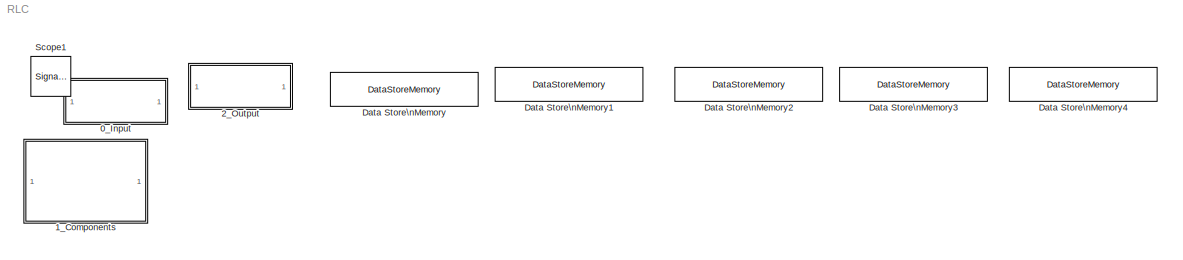
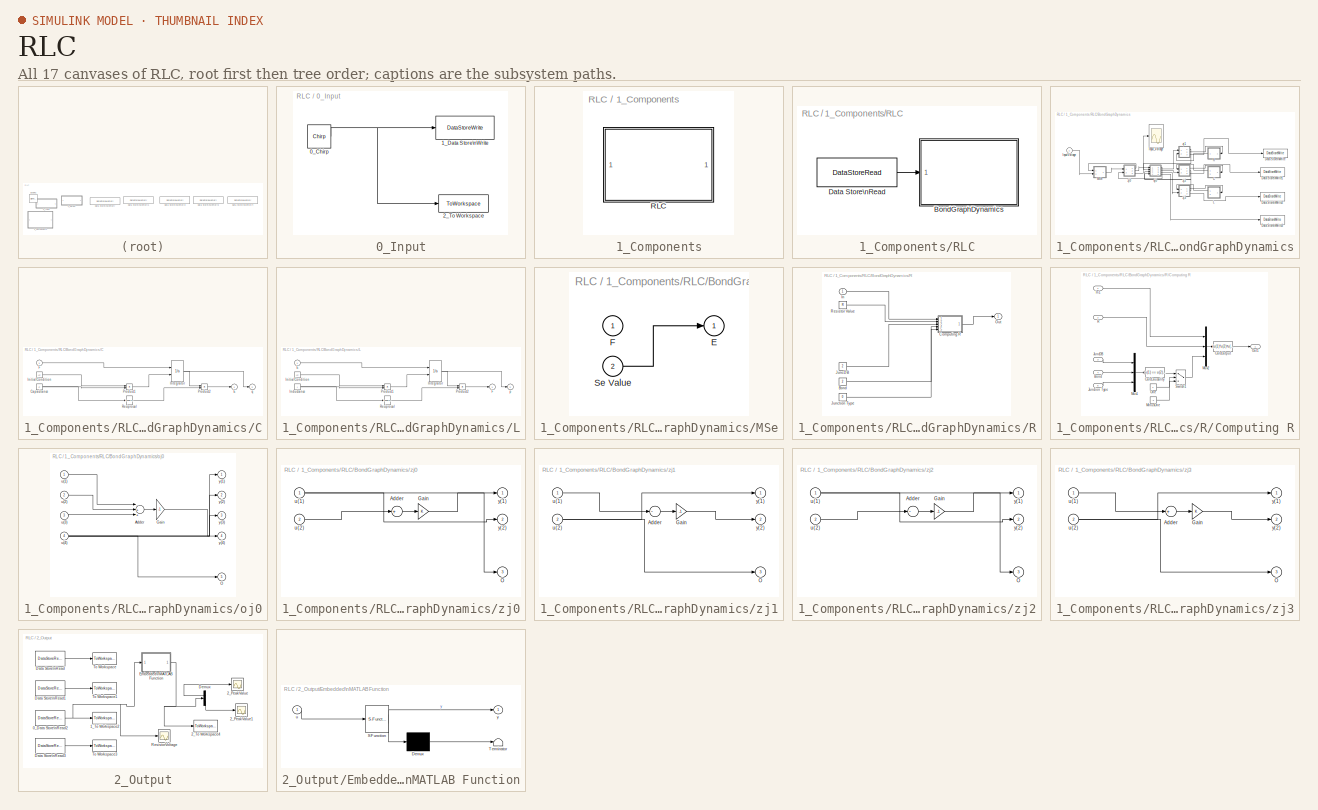
[diagram: thumbnail index - all 17 canvases of the model, root first then tree order]
MODEL RLC
KIND model
CONFIG InitFcn = RLC_datastruct
CONFIG StopFcn = PostProcessing
BLOCK [SubSystem] 0_Input
  FunctionWithSeparateData = off
  MaskHideContents = off
  MinAlgLoopOccurrences = off
  Opaque = off
  Ports = []
  PropExecContextOutsideSubsystem = off
  RTWSystemCode = Auto
  RequestExecContextInheritance = off
  SID = 100
BLOCK [Reference] 0_Input/0_Chirp  REF=dspsrcs4/Chirp
  Ports = [0, 1]
  SID = 138
  SourceBlock = dspsrcs4/Chirp
  SourceType = Chirp
  Ts = 1/32000
  Tsweep = 4
  datatype = Double
  f0 = 1
  f1 = 1000
  mode = Unidirectional
  phase = 0
  spf = 1
  sweep = Linear
  t1 = 4
BLOCK [DataStoreWrite] 0_Input/1_Data Store\nWrite
  DataStoreName = DS_InputVoltage
  SID = 103
  SampleTime = -1
BLOCK [ToWorkspace] 0_Input/2_To Workspace
  MaxDataPoints = inf
  Ports = [1]
  SID = 105
  SampleTime = -1
  SaveFormat = Structure With Time
  VariableName = InputVoltage
BLOCK [SubSystem] 1_Components
  FunctionWithSeparateData = off
  MaskHideContents = off
  MinAlgLoopOccurrences = off
  Opaque = off
  Ports = []
  PropExecContextOutsideSubsystem = off
  RTWSystemCode = Auto
  RequestExecContextInheritance = off
  SID = 1
BLOCK [SubSystem] 1_Components/RLC
  FunctionWithSeparateData = off
  MaskHideContents = off
  MinAlgLoopOccurrences = off
  Opaque = off
  Ports = []
  PropExecContextOutsideSubsystem = off
  RTWSystemCode = Auto
  RequestExecContextInheritance = off
  SID = 2
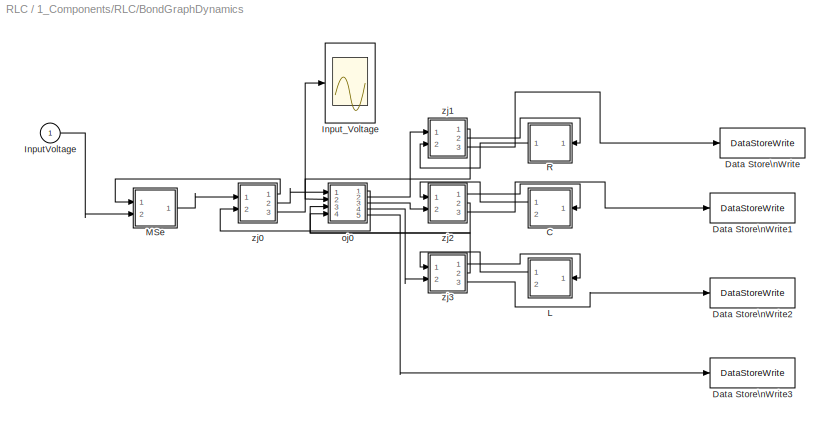
BLOCK [SubSystem] 1_Components/RLC/BondGraphDynamics
  FunctionWithSeparateData = off
  MaskHideContents = off
  MinAlgLoopOccurrences = off
  Opaque = off
  Ports = [1]
  PropExecContextOutsideSubsystem = off
  RTWSystemCode = Auto
  RequestExecContextInheritance = off
  SID = 3
BLOCK [SubSystem] 1_Components/RLC/BondGraphDynamics/C
  FunctionWithSeparateData = off
  MaskCallbackString = |
  MaskDisplay = image(imread('C.png','BackgroundColor',[1 1 1]))
  MaskEnableString = on,on
  MaskHideContents = off
  MaskIconFrame = on
  MaskIconOpaque = on
  MaskIconRotate = none
  MaskIconUnits = autoscale
  MaskPortRotate = default
  MaskPromptString = Value of C:|Initial Condition:
  MaskStyleString = edit,edit
  MaskToolTipString = on,on
  MaskTunableValueString = on,on
  MaskValueString = CValue|0
  MaskVariables = C=@1;IC=@2
  MaskVisibilityString = on,on
  MinAlgLoopOccurrences = off
  Opaque = off
  Ports = [1, 2]
  PropExecContextOutsideSubsystem = off
  RTWSystemCode = Auto
  RequestExecContextInheritance = off
  SID = 70
BLOCK [Constant] 1_Components/RLC/BondGraphDynamics/C/Capacitance
  SID = 73
  Value = C
BLOCK [Outport] 1_Components/RLC/BondGraphDynamics/C/E
  IconDisplay = Port number
  SID = 78
BLOCK [Inport] 1_Components/RLC/BondGraphDynamics/C/F
  IconDisplay = Port number
  SID = 71
BLOCK [Constant] 1_Components/RLC/BondGraphDynamics/C/InitialCondition
  SID = 72
  Value = IC
BLOCK [Integrator] 1_Components/RLC/BondGraphDynamics/C/Integrator
  InitialConditionSource = external
  Ports = [2, 1]
  SID = 76
BLOCK [Product] 1_Components/RLC/BondGraphDynamics/C/Product1
  Ports = [2, 1]
  SID = 74
BLOCK [Product] 1_Components/RLC/BondGraphDynamics/C/Product2
  Ports = [2, 1]
  SID = 77
BLOCK [Math] 1_Components/RLC/BondGraphDynamics/C/Reciprocal
  Operator = reciprocal
  Ports = [1, 1]
  SID = 75
BLOCK [Outport] 1_Components/RLC/BondGraphDynamics/C/q
  IconDisplay = Port number
  Port = 2
  SID = 79
BLOCK [DataStoreWrite] 1_Components/RLC/BondGraphDynamics/Data Store\nWrite
  DataStoreName = DS_RVoltage
  SID = 118
  SampleTime = -1
BLOCK [DataStoreWrite] 1_Components/RLC/BondGraphDynamics/Data Store\nWrite1
  DataStoreName = DS_CVoltage
  SID = 122
  SampleTime = -1
BLOCK [DataStoreWrite] 1_Components/RLC/BondGraphDynamics/Data Store\nWrite2
  DataStoreName = DS_LVoltage
  SID = 123
  SampleTime = -1
BLOCK [DataStoreWrite] 1_Components/RLC/BondGraphDynamics/Data Store\nWrite3
  DataStoreName = DS_Current
  SID = 124
  SampleTime = -1
BLOCK [Inport] 1_Components/RLC/BondGraphDynamics/InputVoltage
  IconDisplay = Port number
  SID = 98
BLOCK [Scope] 1_Components/RLC/BondGraphDynamics/Input_Voltage
  DataFormat = StructureWithTime
  Floating = off
  LimitDataPoints = off
  NumInputPorts = 1
  Ports = [1]
  SID = 7
  SampleTime = 0
BLOCK [SubSystem] 1_Components/RLC/BondGraphDynamics/L
  FunctionWithSeparateData = off
  MaskCallbackString = |
  MaskDisplay = image(imread('I.png','BackgroundColor',[1 1 1]))
  MaskEnableString = on,on
  MaskHideContents = off
  MaskIconFrame = on
  MaskIconOpaque = on
  MaskIconRotate = none
  MaskIconUnits = autoscale
  MaskPortRotate = default
  MaskPromptString = Value of I:|Initial Condition:
  MaskStyleString = edit,edit
  MaskToolTipString = on,on
  MaskTunableValueString = on,on
  MaskValueString = LValue|0
  MaskVariables = I=@1;IC=@2
  MaskVisibilityString = on,on
  MinAlgLoopOccurrences = off
  Opaque = off
  Ports = [1, 2]
  PropExecContextOutsideSubsystem = off
  RTWSystemCode = Auto
  RequestExecContextInheritance = off
  SID = 88
BLOCK [Inport] 1_Components/RLC/BondGraphDynamics/L/E
  IconDisplay = Port number
  SID = 89
BLOCK [Outport] 1_Components/RLC/BondGraphDynamics/L/F
  IconDisplay = Port number
  SID = 96
BLOCK [Constant] 1_Components/RLC/BondGraphDynamics/L/Inductance
  SID = 91
  Value = I
BLOCK [Constant] 1_Components/RLC/BondGraphDynamics/L/InitialCondition
  SID = 90
  Value = IC
BLOCK [Integrator] 1_Components/RLC/BondGraphDynamics/L/Integrator
  InitialConditionSource = external
  Ports = [2, 1]
  SID = 94
BLOCK [Product] 1_Components/RLC/BondGraphDynamics/L/Product1
  Ports = [2, 1]
  SID = 92
BLOCK [Product] 1_Components/RLC/BondGraphDynamics/L/Product2
  Ports = [2, 1]
  SID = 95
BLOCK [Math] 1_Components/RLC/BondGraphDynamics/L/Reciprocal
  Operator = reciprocal
  Ports = [1, 1]
  SID = 93
BLOCK [Outport] 1_Components/RLC/BondGraphDynamics/L/p
  IconDisplay = Port number
  Port = 2
  SID = 97
BLOCK [SubSystem] 1_Components/RLC/BondGraphDynamics/MSe
  FunctionWithSeparateData = off
  MaskDisplay = image(imread('MSe.png','BackgroundColor',[1 1 1]))
  MaskHideContents = off
  MaskIconFrame = on
  MaskIconOpaque = on
  MaskIconRotate = none
  MaskIconUnits = autoscale
  MaskPortRotate = default
  MinAlgLoopOccurrences = off
  Opaque = off
  Ports = [2, 1]
  PropExecContextOutsideSubsystem = off
  RTWSystemCode = Auto
  RequestExecContextInheritance = off
  SID = 9
BLOCK [Outport] 1_Components/RLC/BondGraphDynamics/MSe/E
  IconDisplay = Port number
  SID = 11
BLOCK [Inport] 1_Components/RLC/BondGraphDynamics/MSe/F
  IconDisplay = Port number
  SID = 10
BLOCK [Inport] 1_Components/RLC/BondGraphDynamics/MSe/Se Value
  IconDisplay = Port number
  Port = 2
  SID = 12
BLOCK [SubSystem] 1_Components/RLC/BondGraphDynamics/R
  FunctionWithSeparateData = off
  MaskDisplay = image(imread('R.png','BackgroundColor',[1 1 1]))
  MaskEnableString = on
  MaskHideContents = off
  MaskIconFrame = on
  MaskIconOpaque = on
  MaskIconRotate = none
  MaskIconUnits = autoscale
  MaskPortRotate = default
  MaskPromptString = Value of R:
  MaskStyleString = edit
  MaskToolTipString = on
  MaskTunableValueString = on
  MaskValueString = RValue
  MaskVariables = R=@1
  MaskVisibilityString = on
  MinAlgLoopOccurrences = off
  Opaque = off
  Ports = [1, 1]
  PropExecContextOutsideSubsystem = off
  RTWSystemCode = Auto
  RequestExecContextInheritance = off
  SID = 41
BLOCK [Constant] 1_Components/RLC/BondGraphDynamics/R/Bond
  SID = 45
  Value = 2
BLOCK [SubSystem] 1_Components/RLC/BondGraphDynamics/R/Computing R
  FunctionWithSeparateData = off
  MaskHideContents = off
  MinAlgLoopOccurrences = off
  Opaque = off
  Ports = [5, 1]
  PropExecContextOutsideSubsystem = off
  RTWSystemCode = Auto
  RequestExecContextInheritance = off
  SID = 48
  ShowPortLabels = none
BLOCK [Inport] 1_Components/RLC/BondGraphDynamics/R/Computing R/Bond
  IconDisplay = Port number
  Port = 4
  SID = 52
BLOCK [Fcn] 1_Components/RLC/BondGraphDynamics/R/Computing R/CalcCausality
  Expr = (u(1) == u(2) && u(3) ==1) || (u(1) !=u(2) && u(3) == 0)
  SID = 59
BLOCK [Fcn] 1_Components/RLC/BondGraphDynamics/R/Computing R/CalcOutput
  Expr = (u(1)*u(2)^u(3))
  SID = 60
BLOCK [Inport] 1_Components/RLC/BondGraphDynamics/R/Computing R/In1
  IconDisplay = Port number
  SID = 49
BLOCK [Inport] 1_Components/RLC/BondGraphDynamics/R/Computing R/JuncDB
  IconDisplay = Port number
  Port = 3
  SID = 51
BLOCK [Inport] 1_Components/RLC/BondGraphDynamics/R/Computing R/Junction Type
  IconDisplay = Port number
  Port = 5
  SID = 53
BLOCK [Constant] 1_Components/RLC/BondGraphDynamics/R/Computing R/MinusOne
  SID = 56
  Value = -1
BLOCK [Mux] 1_Components/RLC/BondGraphDynamics/R/Computing R/Mux1
  DisplayOption = bar
  Inputs = 3
  Ports = [3, 1]
  SID = 57
BLOCK [Mux] 1_Components/RLC/BondGraphDynamics/R/Computing R/Mux2
  DisplayOption = bar
  Inputs = 3
  Ports = [3, 1]
  SID = 58
BLOCK [Constant] 1_Components/RLC/BondGraphDynamics/R/Computing R/One
  SID = 55
BLOCK [Outport] 1_Components/RLC/BondGraphDynamics/R/Computing R/Out1
  IconDisplay = Port number
  SID = 54
BLOCK [Inport] 1_Components/RLC/BondGraphDynamics/R/Computing R/R
  IconDisplay = Port number
  Port = 2
  SID = 50
BLOCK [MultiPortSwitch] 1_Components/RLC/BondGraphDynamics/R/Computing R/Switch1
  DataPortOrder = Zero-based contiguous
  Inputs = 2
  Ports = [3, 1]
  SID = 61
  zeroidx = on
BLOCK [Inport] 1_Components/RLC/BondGraphDynamics/R/In
  IconDisplay = Port number
  SID = 42
BLOCK [Constant] 1_Components/RLC/BondGraphDynamics/R/JuncDB
  SID = 44
  Value = 2
BLOCK [Constant] 1_Components/RLC/BondGraphDynamics/R/Junction Type
  SID = 46
  Value = 0
BLOCK [Outport] 1_Components/RLC/BondGraphDynamics/R/Out
  IconDisplay = Port number
  SID = 47
BLOCK [Constant] 1_Components/RLC/BondGraphDynamics/R/Resistor Value
  SID = 43
  Value = R
BLOCK [SubSystem] 1_Components/RLC/BondGraphDynamics/oj0
  FunctionWithSeparateData = off
  MaskDisplay = image(imread('1.png','BackgroundColor',[1 1 1]))
  MaskHideContents = off
  MaskIconFrame = on
  MaskIconOpaque = on
  MaskIconRotate = none
  MaskIconUnits = autoscale
  MaskPortRotate = default
  MinAlgLoopOccurrences = off
  Opaque = off
  Ports = [4, 5]
  PropExecContextOutsideSubsystem = off
  RTWSystemCode = Auto
  RequestExecContextInheritance = off
  SID = 21
  ShowPortLabels = none
BLOCK [Sum] 1_Components/RLC/BondGraphDynamics/oj0/Adder
  Inputs = -++
  Ports = [3, 1]
  SID = 22
BLOCK [Gain] 1_Components/RLC/BondGraphDynamics/oj0/Gain
  Gain = -1
  SID = 23
BLOCK [Outport] 1_Components/RLC/BondGraphDynamics/oj0/O
  IconDisplay = Port number
  Port = 5
  SID = 32
BLOCK [Inport] 1_Components/RLC/BondGraphDynamics/oj0/u(1)
  IconDisplay = Port number
  SID = 24
BLOCK [Inport] 1_Components/RLC/BondGraphDynamics/oj0/u(2)
  IconDisplay = Port number
  Port = 2
  SID = 26
BLOCK [Inport] 1_Components/RLC/BondGraphDynamics/oj0/u(3)
  IconDisplay = Port number
  Port = 3
  SID = 28
BLOCK [Inport] 1_Components/RLC/BondGraphDynamics/oj0/u(4)
  IconDisplay = Port number
  Port = 4
  SID = 30
BLOCK [Outport] 1_Components/RLC/BondGraphDynamics/oj0/y(1)
  IconDisplay = Port number
  SID = 25
BLOCK [Outport] 1_Components/RLC/BondGraphDynamics/oj0/y(2)
  IconDisplay = Port number
  Port = 2
  SID = 27
BLOCK [Outport] 1_Components/RLC/BondGraphDynamics/oj0/y(3)
  IconDisplay = Port number
  Port = 3
  SID = 29
BLOCK [Outport] 1_Components/RLC/BondGraphDynamics/oj0/y(4)
  IconDisplay = Port number
  Port = 4
  SID = 31
BLOCK [SubSystem] 1_Components/RLC/BondGraphDynamics/zj0
  FunctionWithSeparateData = off
  MaskDisplay = image(imread('0.png','BackgroundColor',[1 1 1]))
  MaskHideContents = off
  MaskIconFrame = on
  MaskIconOpaque = on
  MaskIconRotate = none
  MaskIconUnits = autoscale
  MaskPortRotate = default
  MinAlgLoopOccurrences = off
  Opaque = off
  Ports = [2, 3]
  PropExecContextOutsideSubsystem = off
  RTWSystemCode = Auto
  RequestExecContextInheritance = off
  SID = 13
  ShowPortLabels = none
BLOCK [Sum] 1_Components/RLC/BondGraphDynamics/zj0/Adder
  Inputs = +
  Ports = [1, 1]
  SID = 14
BLOCK [Gain] 1_Components/RLC/BondGraphDynamics/zj0/Gain
  SID = 15
BLOCK [Outport] 1_Components/RLC/BondGraphDynamics/zj0/O
  IconDisplay = Port number
  Port = 3
  SID = 20
BLOCK [Inport] 1_Components/RLC/BondGraphDynamics/zj0/u(1)
  IconDisplay = Port number
  SID = 16
BLOCK [Inport] 1_Components/RLC/BondGraphDynamics/zj0/u(2)
  IconDisplay = Port number
  Port = 2
  SID = 18
BLOCK [Outport] 1_Components/RLC/BondGraphDynamics/zj0/y(1)
  IconDisplay = Port number
  SID = 17
BLOCK [Outport] 1_Components/RLC/BondGraphDynamics/zj0/y(2)
  IconDisplay = Port number
  Port = 2
  SID = 19
BLOCK [SubSystem] 1_Components/RLC/BondGraphDynamics/zj1
  FunctionWithSeparateData = off
  MaskDisplay = image(imread('0.png','BackgroundColor',[1 1 1]))
  MaskHideContents = off
  MaskIconFrame = on
  MaskIconOpaque = on
  MaskIconRotate = none
  MaskIconUnits = autoscale
  MaskPortRotate = default
  MinAlgLoopOccurrences = off
  Opaque = off
  Ports = [2, 3]
  PropExecContextOutsideSubsystem = off
  RTWSystemCode = Auto
  RequestExecContextInheritance = off
  SID = 33
  ShowPortLabels = none
BLOCK [Sum] 1_Components/RLC/BondGraphDynamics/zj1/Adder
  Inputs = -
  Ports = [1, 1]
  SID = 34
BLOCK [Gain] 1_Components/RLC/BondGraphDynamics/zj1/Gain
  Gain = -1
  SID = 35
BLOCK [Outport] 1_Components/RLC/BondGraphDynamics/zj1/O
  IconDisplay = Port number
  Port = 3
  SID = 40
BLOCK [Inport] 1_Components/RLC/BondGraphDynamics/zj1/u(1)
  IconDisplay = Port number
  SID = 36
BLOCK [Inport] 1_Components/RLC/BondGraphDynamics/zj1/u(2)
  IconDisplay = Port number
  Port = 2
  SID = 38
BLOCK [Outport] 1_Components/RLC/BondGraphDynamics/zj1/y(1)
  IconDisplay = Port number
  SID = 37
BLOCK [Outport] 1_Components/RLC/BondGraphDynamics/zj1/y(2)
  IconDisplay = Port number
  Port = 2
  SID = 39
BLOCK [SubSystem] 1_Components/RLC/BondGraphDynamics/zj2
  FunctionWithSeparateData = off
  MaskDisplay = image(imread('0.png','BackgroundColor',[1 1 1]))
  MaskHideContents = off
  MaskIconFrame = on
  MaskIconOpaque = on
  MaskIconRotate = none
  MaskIconUnits = autoscale
  MaskPortRotate = default
  MinAlgLoopOccurrences = off
  Opaque = off
  Ports = [2, 3]
  PropExecContextOutsideSubsystem = off
  RTWSystemCode = Auto
  RequestExecContextInheritance = off
  SID = 62
  ShowPortLabels = none
BLOCK [Sum] 1_Components/RLC/BondGraphDynamics/zj2/Adder
  Inputs = -
  Ports = [1, 1]
  SID = 63
BLOCK [Gain] 1_Components/RLC/BondGraphDynamics/zj2/Gain
  Gain = -1
  SID = 64
BLOCK [Outport] 1_Components/RLC/BondGraphDynamics/zj2/O
  IconDisplay = Port number
  Port = 3
  SID = 69
BLOCK [Inport] 1_Components/RLC/BondGraphDynamics/zj2/u(1)
  IconDisplay = Port number
  SID = 65
BLOCK [Inport] 1_Components/RLC/BondGraphDynamics/zj2/u(2)
  IconDisplay = Port number
  Port = 2
  SID = 67
BLOCK [Outport] 1_Components/RLC/BondGraphDynamics/zj2/y(1)
  IconDisplay = Port number
  SID = 66
BLOCK [Outport] 1_Components/RLC/BondGraphDynamics/zj2/y(2)
  IconDisplay = Port number
  Port = 2
  SID = 68
BLOCK [SubSystem] 1_Components/RLC/BondGraphDynamics/zj3
  FunctionWithSeparateData = off
  MaskDisplay = image(imread('0.png','BackgroundColor',[1 1 1]))
  MaskHideContents = off
  MaskIconFrame = on
  MaskIconOpaque = on
  MaskIconRotate = none
  MaskIconUnits = autoscale
  MaskPortRotate = default
  MinAlgLoopOccurrences = off
  Opaque = off
  Ports = [2, 3]
  PropExecContextOutsideSubsystem = off
  RTWSystemCode = Auto
  RequestExecContextInheritance = off
  SID = 80
  ShowPortLabels = none
BLOCK [Sum] 1_Components/RLC/BondGraphDynamics/zj3/Adder
  Inputs = +
  Ports = [1, 1]
  SID = 81
BLOCK [Gain] 1_Components/RLC/BondGraphDynamics/zj3/Gain
  SID = 82
BLOCK [Outport] 1_Components/RLC/BondGraphDynamics/zj3/O
  IconDisplay = Port number
  Port = 3
  SID = 87
BLOCK [Inport] 1_Components/RLC/BondGraphDynamics/zj3/u(1)
  IconDisplay = Port number
  SID = 83
BLOCK [Inport] 1_Components/RLC/BondGraphDynamics/zj3/u(2)
  IconDisplay = Port number
  Port = 2
  SID = 85
BLOCK [Outport] 1_Components/RLC/BondGraphDynamics/zj3/y(1)
  IconDisplay = Port number
  SID = 84
BLOCK [Outport] 1_Components/RLC/BondGraphDynamics/zj3/y(2)
  IconDisplay = Port number
  Port = 2
  SID = 86
BLOCK [DataStoreRead] 1_Components/RLC/Data Store\nRead
  DataStoreName = DS_InputVoltage
  SID = 99
  SampleTime = -1
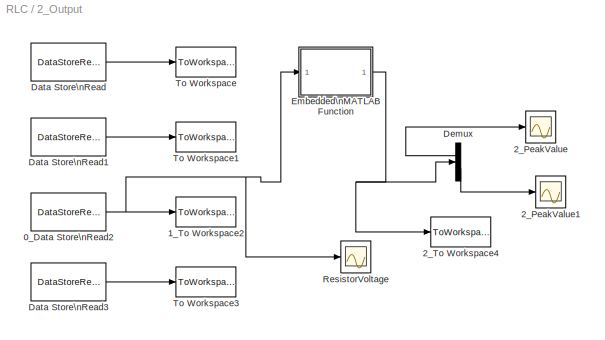
BLOCK [SubSystem] 2_Output
  FunctionWithSeparateData = off
  MaskHideContents = off
  MinAlgLoopOccurrences = off
  Opaque = off
  Ports = []
  PropExecContextOutsideSubsystem = off
  RTWSystemCode = Auto
  RequestExecContextInheritance = off
  SID = 106
BLOCK [DataStoreRead] 2_Output/0_Data Store\nRead2
  DataStoreName = DS_RVoltage
  SID = 112
  SampleTime = -1
BLOCK [ToWorkspace] 2_Output/1_To Workspace2
  MaxDataPoints = inf
  Ports = [1]
  SID = 116
  SampleTime = -1
  SaveFormat = Structure With Time
  VariableName = RVoltage
BLOCK [Scope] 2_Output/2_PeakValue
  DataFormat = StructureWithTime
  Decimation = 10
  Floating = off
  LimitDataPoints = off
  NumInputPorts = 1
  Ports = [1]
  SID = 132
  SampleTime = 0
  SaveName = ScopeData1
  TimeRange = 4
  YMax = 300
  YMin = 0
BLOCK [Scope] 2_Output/2_PeakValue1
  DataFormat = StructureWithTime
  Decimation = 10
  Floating = off
  LimitDataPoints = off
  NumInputPorts = 1
  Ports = [1]
  SID = 140
  SampleTime = 0
  SaveName = ScopeData3
  YMax = 100
  YMin = 0
BLOCK [ToWorkspace] 2_Output/2_To Workspace4
  MaxDataPoints = inf
  Ports = [1]
  SID = 136
  SampleTime = -1
  SaveFormat = Structure With Time
  VariableName = PeakVals
BLOCK [DataStoreRead] 2_Output/Data Store\nRead
  DataStoreName = DS_CVoltage
  SID = 110
  SampleTime = -1
BLOCK [DataStoreRead] 2_Output/Data Store\nRead1
  DataStoreName = DS_LVoltage
  SID = 111
  SampleTime = -1
BLOCK [DataStoreRead] 2_Output/Data Store\nRead3
  DataStoreName = DS_Current
  SID = 113
  SampleTime = -1
BLOCK [Demux] 2_Output/Demux
  DisplayOption = bar
  Outputs = 2
  Ports = [1, 2]
  SID = 139
BLOCK [SubSystem] 2_Output/Embedded\nMATLAB Function
  FunctionWithSeparateData = off
  MaskDescription = Embedded MATLAB block
  MaskDisplay = disp('fcn');
  MaskHideContents = off
  MaskIconFrame = on
  MaskIconOpaque = off
  MaskIconRotate = none
  MaskIconUnits = autoscale
  MaskPortRotate = default
  MaskSelfModifiable = on
  MaskType = Stateflow
  MinAlgLoopOccurrences = off
  Opaque = off
  PermitHierarchicalResolution = ExplicitOnly
  Ports = [1, 1]
  PropExecContextOutsideSubsystem = off
  RTWSystemCode = Auto
  RequestExecContextInheritance = off
  SID = 141
  TreatAsAtomicUnit = on
BLOCK [Demux] 2_Output/Embedded\nMATLAB Function/ Demux 
  Outputs = 1
  Ports = [1, 1]
  SID = 15
BLOCK [S-Function] 2_Output/Embedded\nMATLAB Function/ SFunction 
  EnableBusSupport = on
  FunctionName = sf_sfun
  PortCounts = [1 2]
  Ports = [1, 2]
  SID = 14
  Tag = Stateflow S-Function RLC 2
BLOCK [Terminator] 2_Output/Embedded\nMATLAB Function/ Terminator 
  SID = 17
BLOCK [Inport] 2_Output/Embedded\nMATLAB Function/u
  IconDisplay = Port number
  OutDataType = sfix(16)
  OutScaling = 2^0
  SID = 1
BLOCK [Outport] 2_Output/Embedded\nMATLAB Function/y
  IconDisplay = Port number
  OutDataType = sfix(16)
  OutScaling = 2^0
  SID = 5
BLOCK [Scope] 2_Output/ResistorVoltage
  DataFormat = StructureWithTime
  Decimation = 10
  Floating = off
  LimitDataPoints = off
  NumInputPorts = 1
  Ports = [1]
  SID = 137
  SampleTime = 0
  SaveName = ScopeData2
  YMax = 1
  YMin = -1
BLOCK [ToWorkspace] 2_Output/To Workspace
  MaxDataPoints = inf
  Ports = [1]
  SID = 114
  SampleTime = -1
  SaveFormat = Structure With Time
  VariableName = UVoltage
BLOCK [ToWorkspace] 2_Output/To Workspace1
  MaxDataPoints = inf
  Ports = [1]
  SID = 115
  SampleTime = -1
  SaveFormat = Structure With Time
  VariableName = LVoltage
BLOCK [ToWorkspace] 2_Output/To Workspace3
  MaxDataPoints = inf
  Ports = [1]
  SID = 117
  SampleTime = -1
  SaveFormat = Structure With Time
  VariableName = Current
BLOCK [DataStoreMemory] Data Store\nMemory
  DataStoreName = DS_InputVoltage
  RTWStateStorageClass = Auto
  SID = 125
  VectorParams1D = on
BLOCK [DataStoreMemory] Data Store\nMemory1
  DataStoreName = DS_RVoltage
  RTWStateStorageClass = Auto
  ReadBeforeWriteMsg = warning
  SID = 127
  VectorParams1D = on
  WriteAfterReadMsg = warning
  WriteAfterWriteMsg = warning
BLOCK [DataStoreMemory] Data Store\nMemory2
  DataStoreName = DS_CVoltage
  RTWStateStorageClass = Auto
  ReadBeforeWriteMsg = warning
  SID = 128
  VectorParams1D = on
  WriteAfterReadMsg = warning
  WriteAfterWriteMsg = warning
BLOCK [DataStoreMemory] Data Store\nMemory3
  DataStoreName = DS_LVoltage
  RTWStateStorageClass = Auto
  ReadBeforeWriteMsg = warning
  SID = 129
  VectorParams1D = on
  WriteAfterReadMsg = warning
  WriteAfterWriteMsg = warning
BLOCK [DataStoreMemory] Data Store\nMemory4
  DataStoreName = DS_Current
  RTWStateStorageClass = Auto
  ReadBeforeWriteMsg = warning
  SID = 130
  VectorParams1D = on
  WriteAfterReadMsg = warning
  WriteAfterWriteMsg = warning
BLOCK [SignalViewerScope] Scope1
  DataFormat = Array
  IOType = viewer
  MaxDataPoints = 7500
  NumInputPorts = 1
  Ports = []
  RefreshTime = 0.035000
  SID = 135
  ShowDataMarkers = off
  ShowLegends = off
NET 0_Input/0_Chirp:1 -> 0_Input/1_Data Store\nWrite:1, 0_Input/2_To Workspace:1
NET 1_Components/RLC/BondGraphDynamics/C/Capacitance:1 -> 1_Components/RLC/BondGraphDynamics/C/Product1:2, 1_Components/RLC/BondGraphDynamics/C/Reciprocal:1
LINE 1_Components/RLC/BondGraphDynamics/C/F:1 -> 1_Components/RLC/BondGraphDynamics/C/Integrator:1
LINE 1_Components/RLC/BondGraphDynamics/C/InitialCondition:1 -> 1_Components/RLC/BondGraphDynamics/C/Product1:1
NET 1_Components/RLC/BondGraphDynamics/C/Integrator:1 -> 1_Components/RLC/BondGraphDynamics/C/Product2:1, 1_Components/RLC/BondGraphDynamics/C/q:1
LINE 1_Components/RLC/BondGraphDynamics/C/Product1:1 -> 1_Components/RLC/BondGraphDynamics/C/Integrator:2
LINE 1_Components/RLC/BondGraphDynamics/C/Product2:1 -> 1_Components/RLC/BondGraphDynamics/C/E:1
LINE 1_Components/RLC/BondGraphDynamics/C/Reciprocal:1 -> 1_Components/RLC/BondGraphDynamics/C/Product2:2
LINE 1_Components/RLC/BondGraphDynamics/C:1 -> 1_Components/RLC/BondGraphDynamics/zj2:1
LINE 1_Components/RLC/BondGraphDynamics/InputVoltage:1 -> 1_Components/RLC/BondGraphDynamics/MSe:2
LINE 1_Components/RLC/BondGraphDynamics/L/E:1 -> 1_Components/RLC/BondGraphDynamics/L/Integrator:1
NET 1_Components/RLC/BondGraphDynamics/L/Inductance:1 -> 1_Components/RLC/BondGraphDynamics/L/Product1:2, 1_Components/RLC/BondGraphDynamics/L/Reciprocal:1
LINE 1_Components/RLC/BondGraphDynamics/L/InitialCondition:1 -> 1_Components/RLC/BondGraphDynamics/L/Product1:1
NET 1_Components/RLC/BondGraphDynamics/L/Integrator:1 -> 1_Components/RLC/BondGraphDynamics/L/Product2:1, 1_Components/RLC/BondGraphDynamics/L/p:1
LINE 1_Components/RLC/BondGraphDynamics/L/Product1:1 -> 1_Components/RLC/BondGraphDynamics/L/Integrator:2
LINE 1_Components/RLC/BondGraphDynamics/L/Product2:1 -> 1_Components/RLC/BondGraphDynamics/L/F:1
LINE 1_Components/RLC/BondGraphDynamics/L/Reciprocal:1 -> 1_Components/RLC/BondGraphDynamics/L/Product2:2
LINE 1_Components/RLC/BondGraphDynamics/L:1 -> 1_Components/RLC/BondGraphDynamics/zj3:1
LINE 1_Components/RLC/BondGraphDynamics/MSe/Se Value:1 -> 1_Components/RLC/BondGraphDynamics/MSe/E:1
LINE 1_Components/RLC/BondGraphDynamics/MSe:1 -> 1_Components/RLC/BondGraphDynamics/zj0:1
LINE 1_Components/RLC/BondGraphDynamics/R/Bond:1 -> 1_Components/RLC/BondGraphDynamics/R/Computing R:4
LINE 1_Components/RLC/BondGraphDynamics/R/Computing R/Bond:1 -> 1_Components/RLC/BondGraphDynamics/R/Computing R/Mux1:2
LINE 1_Components/RLC/BondGraphDynamics/R/Computing R/CalcCausality:1 -> 1_Components/RLC/BondGraphDynamics/R/Computing R/Switch1:1
LINE 1_Components/RLC/BondGraphDynamics/R/Computing R/CalcOutput:1 -> 1_Components/RLC/BondGraphDynamics/R/Computing R/Out1:1
LINE 1_Components/RLC/BondGraphDynamics/R/Computing R/In1:1 -> 1_Components/RLC/BondGraphDynamics/R/Computing R/Mux2:1
LINE 1_Components/RLC/BondGraphDynamics/R/Computing R/JuncDB:1 -> 1_Components/RLC/BondGraphDynamics/R/Computing R/Mux1:1
LINE 1_Components/RLC/BondGraphDynamics/R/Computing R/Junction Type:1 -> 1_Components/RLC/BondGraphDynamics/R/Computing R/Mux1:3
LINE 1_Components/RLC/BondGraphDynamics/R/Computing R/MinusOne:1 -> 1_Components/RLC/BondGraphDynamics/R/Computing R/Switch1:3
LINE 1_Components/RLC/BondGraphDynamics/R/Computing R/Mux1:1 -> 1_Components/RLC/BondGraphDynamics/R/Computing R/CalcCausality:1
LINE 1_Components/RLC/BondGraphDynamics/R/Computing R/Mux2:1 -> 1_Components/RLC/BondGraphDynamics/R/Computing R/CalcOutput:1
LINE 1_Components/RLC/BondGraphDynamics/R/Computing R/One:1 -> 1_Components/RLC/BondGraphDynamics/R/Computing R/Switch1:2
LINE 1_Components/RLC/BondGraphDynamics/R/Computing R/R:1 -> 1_Components/RLC/BondGraphDynamics/R/Computing R/Mux2:2
LINE 1_Components/RLC/BondGraphDynamics/R/Computing R/Switch1:1 -> 1_Components/RLC/BondGraphDynamics/R/Computing R/Mux2:3
LINE 1_Components/RLC/BondGraphDynamics/R/Computing R:1 -> 1_Components/RLC/BondGraphDynamics/R/Out:1
LINE 1_Components/RLC/BondGraphDynamics/R/In:1 -> 1_Components/RLC/BondGraphDynamics/R/Computing R:1
LINE 1_Components/RLC/BondGraphDynamics/R/JuncDB:1 -> 1_Components/RLC/BondGraphDynamics/R/Computing R:3
LINE 1_Components/RLC/BondGraphDynamics/R/Junction Type:1 -> 1_Components/RLC/BondGraphDynamics/R/Computing R:5
LINE 1_Components/RLC/BondGraphDynamics/R/Resistor Value:1 -> 1_Components/RLC/BondGraphDynamics/R/Computing R:2
LINE 1_Components/RLC/BondGraphDynamics/R:1 -> 1_Components/RLC/BondGraphDynamics/zj1:2
LINE 1_Components/RLC/BondGraphDynamics/oj0/Adder:1 -> 1_Components/RLC/BondGraphDynamics/oj0/Gain:1
LINE 1_Components/RLC/BondGraphDynamics/oj0/Gain:1 -> 1_Components/RLC/BondGraphDynamics/oj0/y(4):1
LINE 1_Components/RLC/BondGraphDynamics/oj0/u(1):1 -> 1_Components/RLC/BondGraphDynamics/oj0/Adder:1
LINE 1_Components/RLC/BondGraphDynamics/oj0/u(2):1 -> 1_Components/RLC/BondGraphDynamics/oj0/Adder:2
LINE 1_Components/RLC/BondGraphDynamics/oj0/u(3):1 -> 1_Components/RLC/BondGraphDynamics/oj0/Adder:3
NET 1_Components/RLC/BondGraphDynamics/oj0/u(4):1 -> 1_Components/RLC/BondGraphDynamics/oj0/O:1, 1_Components/RLC/BondGraphDynamics/oj0/y(1):1, 1_Components/RLC/BondGraphDynamics/oj0/y(2):1, 1_Components/RLC/BondGraphDynamics/oj0/y(3):1
LINE 1_Components/RLC/BondGraphDynamics/oj0:1 -> 1_Components/RLC/BondGraphDynamics/zj0:2
LINE 1_Components/RLC/BondGraphDynamics/oj0:2 -> 1_Components/RLC/BondGraphDynamics/zj1:1
LINE 1_Components/RLC/BondGraphDynamics/oj0:3 -> 1_Components/RLC/BondGraphDynamics/zj2:2
LINE 1_Components/RLC/BondGraphDynamics/oj0:4 -> 1_Components/RLC/BondGraphDynamics/zj3:2
LINE 1_Components/RLC/BondGraphDynamics/oj0:5 -> 1_Components/RLC/BondGraphDynamics/Data Store\nWrite3:1
LINE 1_Components/RLC/BondGraphDynamics/zj0/Adder:1 -> 1_Components/RLC/BondGraphDynamics/zj0/Gain:1
LINE 1_Components/RLC/BondGraphDynamics/zj0/Gain:1 -> 1_Components/RLC/BondGraphDynamics/zj0/y(1):1
NET 1_Components/RLC/BondGraphDynamics/zj0/u(1):1 -> 1_Components/RLC/BondGraphDynamics/zj0/O:1, 1_Components/RLC/BondGraphDynamics/zj0/y(2):1
LINE 1_Components/RLC/BondGraphDynamics/zj0/u(2):1 -> 1_Components/RLC/BondGraphDynamics/zj0/Adder:1
LINE 1_Components/RLC/BondGraphDynamics/zj0:1 -> 1_Components/RLC/BondGraphDynamics/MSe:1
LINE 1_Components/RLC/BondGraphDynamics/zj0:2 -> 1_Components/RLC/BondGraphDynamics/oj0:1
LINE 1_Components/RLC/BondGraphDynamics/zj0:3 -> 1_Components/RLC/BondGraphDynamics/Input_Voltage:1
LINE 1_Components/RLC/BondGraphDynamics/zj1/Adder:1 -> 1_Components/RLC/BondGraphDynamics/zj1/Gain:1
LINE 1_Components/RLC/BondGraphDynamics/zj1/Gain:1 -> 1_Components/RLC/BondGraphDynamics/zj1/y(2):1
LINE 1_Components/RLC/BondGraphDynamics/zj1/u(1):1 -> 1_Components/RLC/BondGraphDynamics/zj1/Adder:1
NET 1_Components/RLC/BondGraphDynamics/zj1/u(2):1 -> 1_Components/RLC/BondGraphDynamics/zj1/O:1, 1_Components/RLC/BondGraphDynamics/zj1/y(1):1
LINE 1_Components/RLC/BondGraphDynamics/zj1:1 -> 1_Components/RLC/BondGraphDynamics/oj0:2
LINE 1_Components/RLC/BondGraphDynamics/zj1:2 -> 1_Components/RLC/BondGraphDynamics/R:1
LINE 1_Components/RLC/BondGraphDynamics/zj1:3 -> 1_Components/RLC/BondGraphDynamics/Data Store\nWrite:1
LINE 1_Components/RLC/BondGraphDynamics/zj2/Adder:1 -> 1_Components/RLC/BondGraphDynamics/zj2/Gain:1
LINE 1_Components/RLC/BondGraphDynamics/zj2/Gain:1 -> 1_Components/RLC/BondGraphDynamics/zj2/y(1):1
NET 1_Components/RLC/BondGraphDynamics/zj2/u(1):1 -> 1_Components/RLC/BondGraphDynamics/zj2/O:1, 1_Components/RLC/BondGraphDynamics/zj2/y(2):1
LINE 1_Components/RLC/BondGraphDynamics/zj2/u(2):1 -> 1_Components/RLC/BondGraphDynamics/zj2/Adder:1
LINE 1_Components/RLC/BondGraphDynamics/zj2:1 -> 1_Components/RLC/BondGraphDynamics/C:1
LINE 1_Components/RLC/BondGraphDynamics/zj2:2 -> 1_Components/RLC/BondGraphDynamics/oj0:3
LINE 1_Components/RLC/BondGraphDynamics/zj2:3 -> 1_Components/RLC/BondGraphDynamics/Data Store\nWrite1:1
LINE 1_Components/RLC/BondGraphDynamics/zj3/Adder:1 -> 1_Components/RLC/BondGraphDynamics/zj3/Gain:1
LINE 1_Components/RLC/BondGraphDynamics/zj3/Gain:1 -> 1_Components/RLC/BondGraphDynamics/zj3/y(2):1
LINE 1_Components/RLC/BondGraphDynamics/zj3/u(1):1 -> 1_Components/RLC/BondGraphDynamics/zj3/Adder:1
NET 1_Components/RLC/BondGraphDynamics/zj3/u(2):1 -> 1_Components/RLC/BondGraphDynamics/zj3/O:1, 1_Components/RLC/BondGraphDynamics/zj3/y(1):1
LINE 1_Components/RLC/BondGraphDynamics/zj3:1 -> 1_Components/RLC/BondGraphDynamics/L:1
LINE 1_Components/RLC/BondGraphDynamics/zj3:2 -> 1_Components/RLC/BondGraphDynamics/oj0:4
LINE 1_Components/RLC/BondGraphDynamics/zj3:3 -> 1_Components/RLC/BondGraphDynamics/Data Store\nWrite2:1
LINE 1_Components/RLC/Data Store\nRead:1 -> 1_Components/RLC/BondGraphDynamics:1
NET 2_Output/0_Data Store\nRead2:1 -> 2_Output/1_To Workspace2:1, 2_Output/Embedded\nMATLAB Function:1, 2_Output/ResistorVoltage:1
LINE 2_Output/Data Store\nRead1:1 -> 2_Output/To Workspace1:1
LINE 2_Output/Data Store\nRead3:1 -> 2_Output/To Workspace3:1
LINE 2_Output/Data Store\nRead:1 -> 2_Output/To Workspace:1
LINE 2_Output/Demux:1 -> 2_Output/2_PeakValue:1
LINE 2_Output/Demux:2 -> 2_Output/2_PeakValue1:1
LINE 2_Output/Embedded\nMATLAB Function/ Demux :1 -> 2_Output/Embedded\nMATLAB Function/ Terminator :1
LINE 2_Output/Embedded\nMATLAB Function/ SFunction :1 -> 2_Output/Embedded\nMATLAB Function/ Demux :1
LINE 2_Output/Embedded\nMATLAB Function/ SFunction :2 -> 2_Output/Embedded\nMATLAB Function/y:1
LINE 2_Output/Embedded\nMATLAB Function/u:1 -> 2_Output/Embedded\nMATLAB Function/ SFunction :1
NET 2_Output/Embedded\nMATLAB Function:1 -> 2_Output/2_To Workspace4:1, 2_Output/Demux:1
note: NET lines group one-source signal fan-out (src -> all destinations, sorted); 1:1 wires keep LINE
CHART 2_Output/Embedded\nMATLAB Function states=1 transitions=1
  STATE_LABEL 'eML_blk_kernel()'
